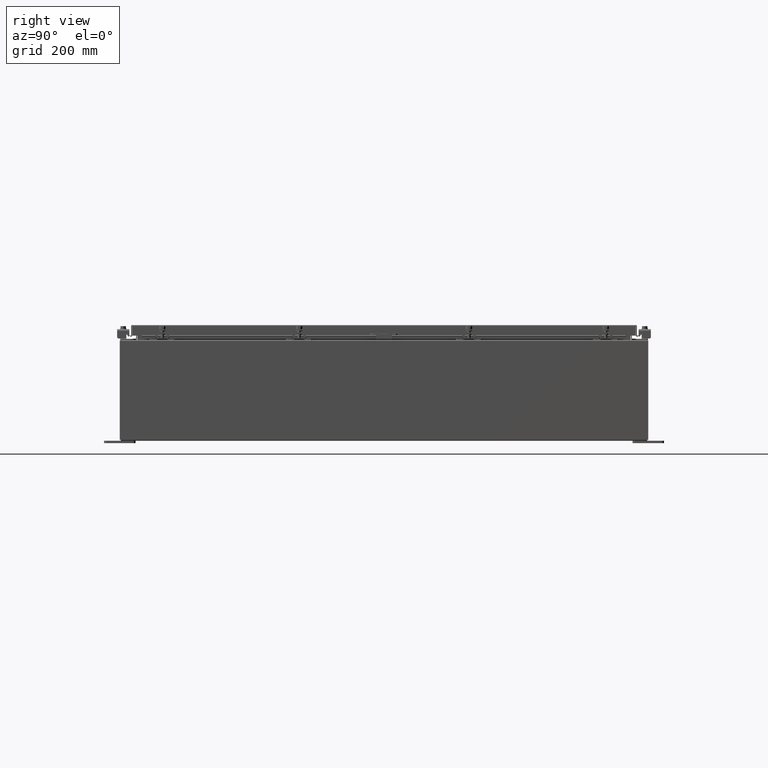
[diagram: clean part render]
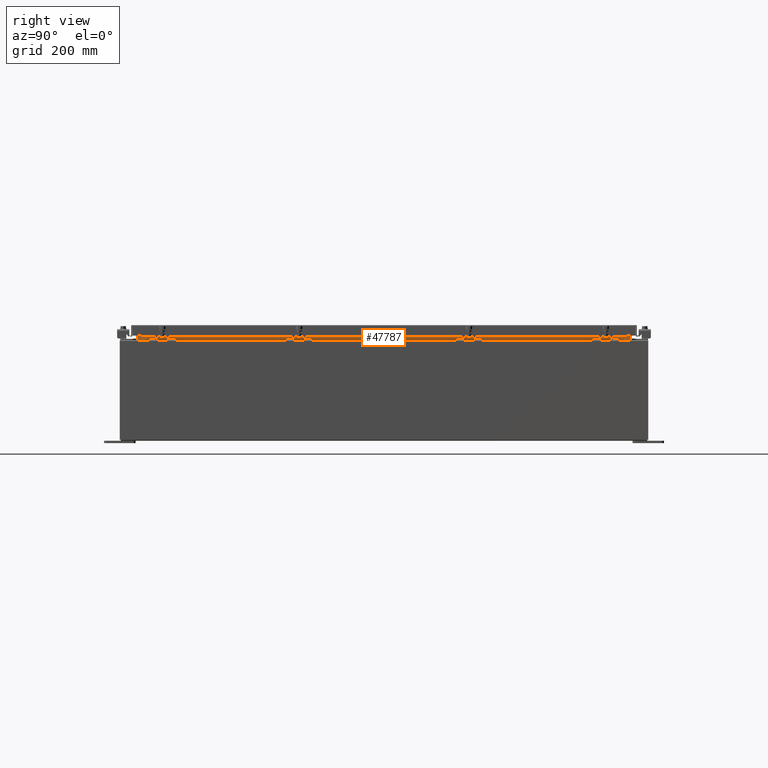
[diagram: same view with one face highlighted and labeled with its STEP entity id]
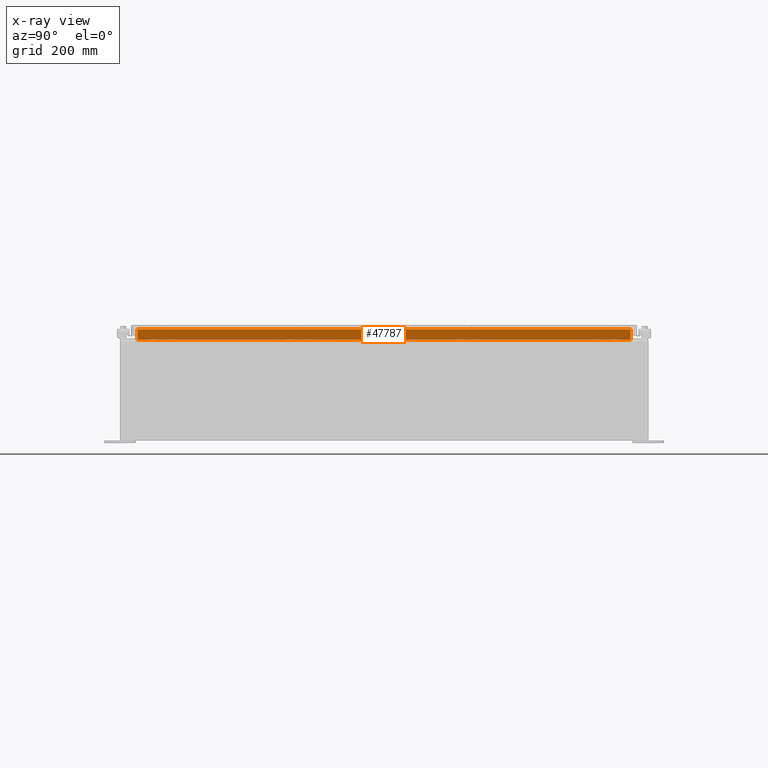
[diagram: x-ray of the same camera — body ghosted, the highlighted face saturated]
A machine part, right view. The second image highlights one B-rep face of the part: STEP entity #47787.
The next image is the same camera in x-ray: the body ghosted, the highlighted face saturated — about 0% of this face is hidden behind the body in this view.
In plain terms, the highlighted planar face has unit normal (1, -0, -0).
Its self-contained STEP definition (entity closure, byte-faithful):
#794 = EDGE_CURVE ( 'NONE', #39770, #10222, #17222, .T. ) ;
#5517 = VERTEX_POINT ( 'NONE', #36268 ) ;
#6487 = CARTESIAN_POINT ( 'NONE',  ( 16.69970000000003200, -19.59375000000000000, 7.938300000000011500 ) ) ;
#6582 = PLANE ( 'NONE',  #37785 ) ;
#6894 = CARTESIAN_POINT ( 'NONE',  ( 16.69970000000003600, 19.59374999999998200, 8.762900000000009000 ) ) ;
#7947 = LINE ( 'NONE', #17182, #16927 ) ;
#9493 = VECTOR ( 'NONE', #22213, 39.37007874015748100 ) ;
#9636 = DIRECTION ( 'NONE',  ( 1.115395672054309000E-016, -1.000000000000000000, 1.673093508081463600E-016 ) ) ;
#10011 = CARTESIAN_POINT ( 'NONE',  ( 16.69970000000003600, -19.59374999999999600, 8.762900000000009000 ) ) ;
#10222 = VERTEX_POINT ( 'NONE', #6894 ) ;
#11022 = FACE_OUTER_BOUND ( 'NONE', #14154, .T. ) ;
#12670 = VERTEX_POINT ( 'NONE', #6487 ) ;
#14154 = EDGE_LOOP ( 'NONE', ( #37754, #19777, #36926, #23654 ) ) ;
#14271 = DIRECTION ( 'NONE',  ( -2.361913319930196000E-015, 0.0000000000000000000, -1.000000000000000000 ) ) ;
#16347 = LINE ( 'NONE', #17328, #39649 ) ;
#16927 = VECTOR ( 'NONE', #9636, 39.37007874015748100 ) ;
#17006 = DIRECTION ( 'NONE',  ( 0.0000000000000000000, 1.000000000000000000, 0.0000000000000000000 ) ) ;
#17182 = CARTESIAN_POINT ( 'NONE',  ( 16.69970000000003200, 19.59374999999997900, 7.938300000000008800 ) ) ;
#17222 = LINE ( 'NONE', #43722, #46475 ) ;
#17328 = CARTESIAN_POINT ( 'NONE',  ( 16.69970000000003200, 19.59374999999997900, 7.925300000000008900 ) ) ;
#19638 = LINE ( 'NONE', #48901, #9493 ) ;
#19777 = ORIENTED_EDGE ( 'NONE', *, *, #794, .F. ) ;
#21169 = DIRECTION ( 'NONE',  ( -2.361913319930196000E-015, -0.0000000000000000000, -1.000000000000000000 ) ) ;
#22213 = DIRECTION ( 'NONE',  ( 2.361913319930201500E-015, -0.0000000000000000000, 1.000000000000000000 ) ) ;
#23654 = ORIENTED_EDGE ( 'NONE', *, *, #27154, .F. ) ;
#27154 = EDGE_CURVE ( 'NONE', #5517, #12670, #7947, .T. ) ;
#33125 = CARTESIAN_POINT ( 'NONE',  ( 16.69970000000001100, -1.099870587577123400E-030, -3.944324386883832200E-014 ) ) ;
#36268 = CARTESIAN_POINT ( 'NONE',  ( 16.69970000000003200, 19.59374999999998200, 7.938300000000011500 ) ) ;
#36926 = ORIENTED_EDGE ( 'NONE', *, *, #38005, .F. ) ;
#37160 = DIRECTION ( 'NONE',  ( 1.000000000000000000, -6.586169737043914400E-032, -2.361913319930196000E-015 ) ) ;
#37754 = ORIENTED_EDGE ( 'NONE', *, *, #42066, .F. ) ;
#37785 = AXIS2_PLACEMENT_3D ( 'NONE', #33125, #37160, #14271 ) ;
#38005 = EDGE_CURVE ( 'NONE', #12670, #39770, #19638, .T. ) ;
#39649 = VECTOR ( 'NONE', #21169, 39.37007874015748100 ) ;
#39770 = VERTEX_POINT ( 'NONE', #10011 ) ;
#42066 = EDGE_CURVE ( 'NONE', #10222, #5517, #16347, .T. ) ;
#43722 = CARTESIAN_POINT ( 'NONE',  ( 16.69970000000003600, -19.59375000000000000, 8.762900000000009000 ) ) ;
#46475 = VECTOR ( 'NONE', #17006, 39.37007874015748100 ) ;
#47787 = ADVANCED_FACE ( 'NONE', ( #11022 ), #6582, .T. ) ;
#48901 = CARTESIAN_POINT ( 'NONE',  ( 16.69970000000003600, -19.59374999999999600, 8.850600000000008900 ) ) ;